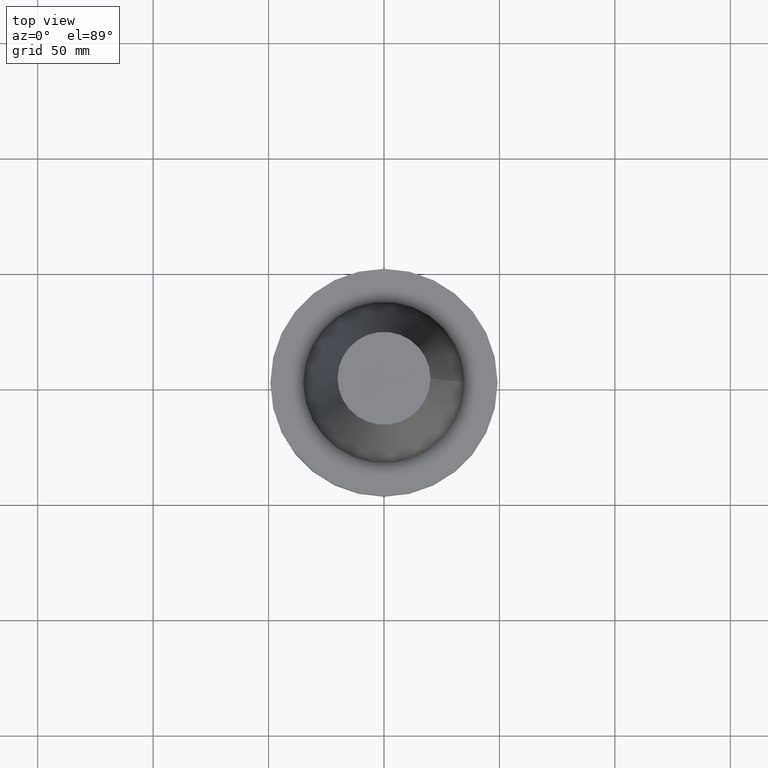
[diagram: clean part render]
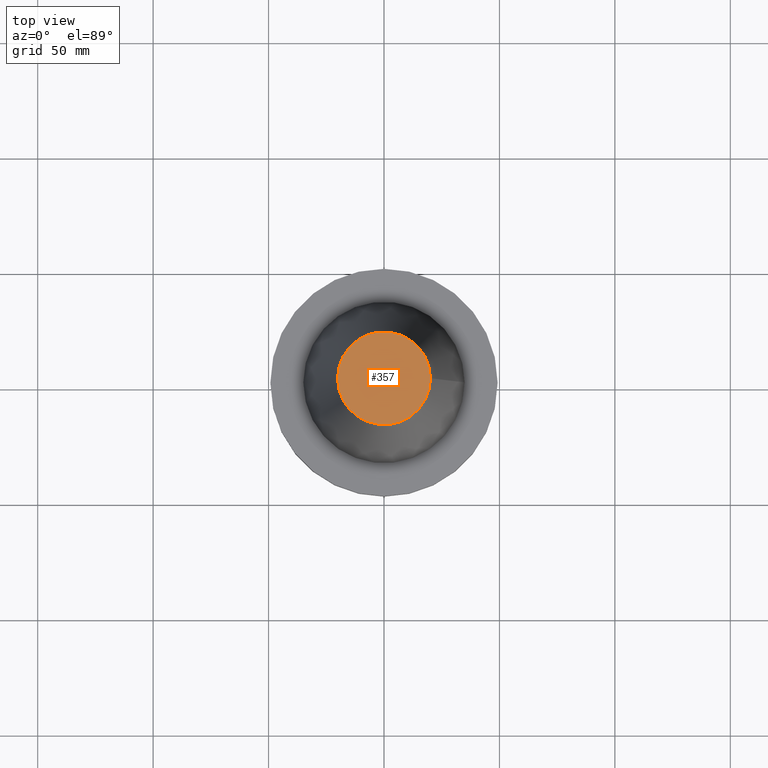
[diagram: same view with one face highlighted and labeled with its STEP entity id]
A machine part, top view. The second image highlights one B-rep face of the part: STEP entity #357.
In plain terms, the highlighted planar face has unit normal (0, 0, -1).
Its self-contained STEP definition (entity closure, byte-faithful):
#25 = ORIENTED_EDGE ( 'NONE', *, *, #183, .T. ) ;
#66 = CARTESIAN_POINT ( 'NONE',  ( 20.10819343178871321, 0.000000000000000000, 101.5999999999999801 ) ) ;
#80 = DIRECTION ( 'NONE',  ( 1.000000000000000000, 0.000000000000000000, 0.000000000000000000 ) ) ;
#93 = EDGE_LOOP ( 'NONE', ( #25 ) ) ;
#98 = AXIS2_PLACEMENT_3D ( 'NONE', #362, #365, #115 ) ;
#108 = VERTEX_POINT ( 'NONE', #66 ) ;
#115 = DIRECTION ( 'NONE',  ( -1.000000000000000000, 0.000000000000000000, -0.000000000000000000 ) ) ;
#183 = EDGE_CURVE ( 'NONE', #108, #108, #299, .T. ) ;
#263 = FACE_OUTER_BOUND ( 'NONE', #93, .T. ) ;
#299 = CIRCLE ( 'NONE', #392, 20.10819343178871321 ) ;
#323 = CARTESIAN_POINT ( 'NONE',  ( 0.000000000000000000, 0.000000000000000000, 101.5999999999999801 ) ) ;
#357 = ADVANCED_FACE ( 'NONE', ( #263 ), #387, .F. ) ;
#362 = CARTESIAN_POINT ( 'NONE',  ( 0.000000000000000000, 20.10819343178871321, 101.5999999999999943 ) ) ;
#365 = DIRECTION ( 'NONE',  ( 0.000000000000000000, 0.000000000000000000, -1.000000000000000000 ) ) ;
#376 = DIRECTION ( 'NONE',  ( -0.000000000000000000, -0.000000000000000000, 1.000000000000000000 ) ) ;
#387 = PLANE ( 'NONE',  #98 ) ;
#392 = AXIS2_PLACEMENT_3D ( 'NONE', #323, #376, #80 ) ;